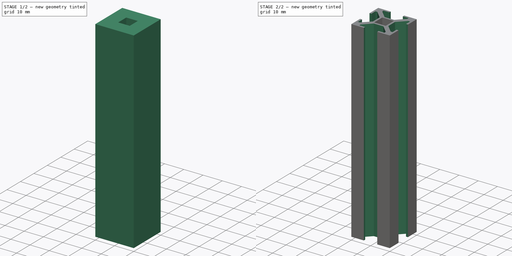
[diagram: build sequence overview — one tinted view per stage of 2, left to right]
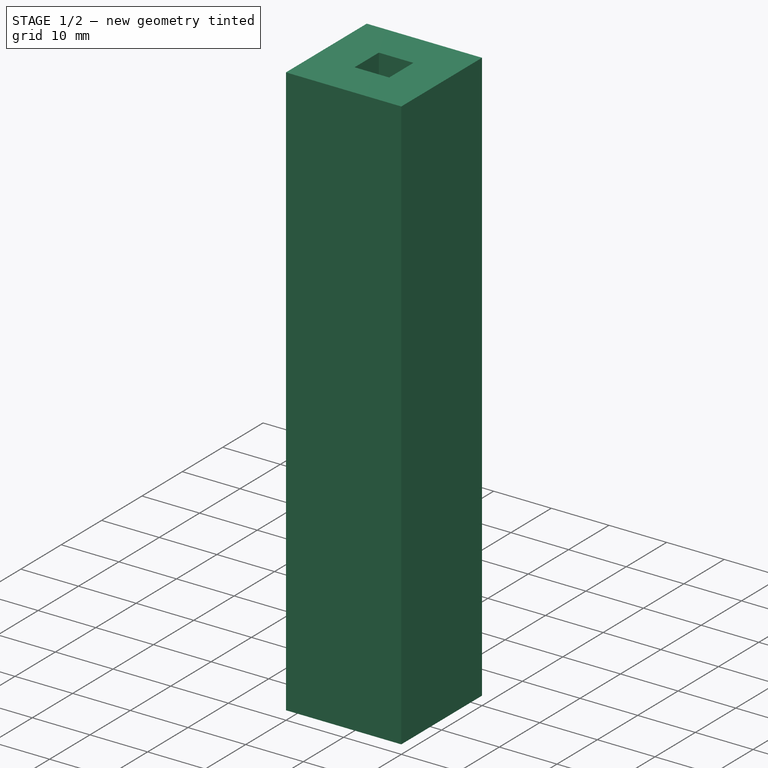
[diagram: stage 1 of 2 — iso view after this stage's code; geometry added in this stage tinted green]
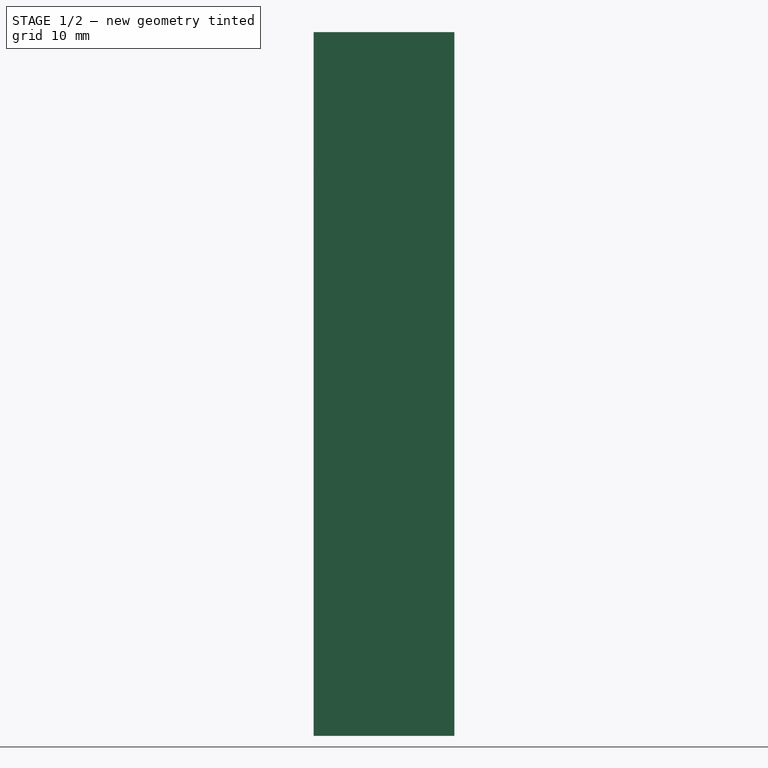
[diagram: stage 1 of 2 — front view after this stage's code; geometry added in this stage tinted green]
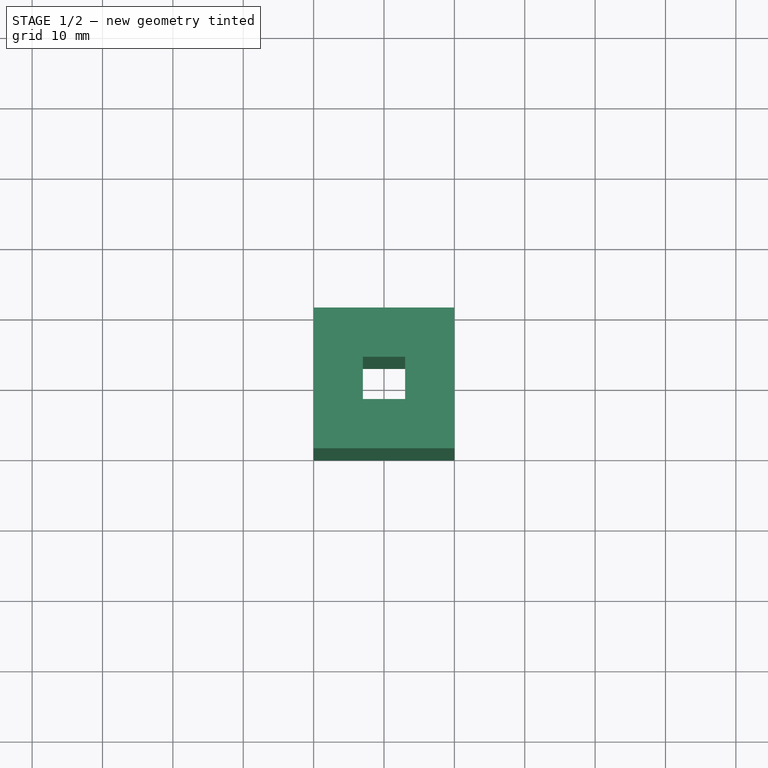
[diagram: stage 1 of 2 — top view after this stage's code; geometry added in this stage tinted green]
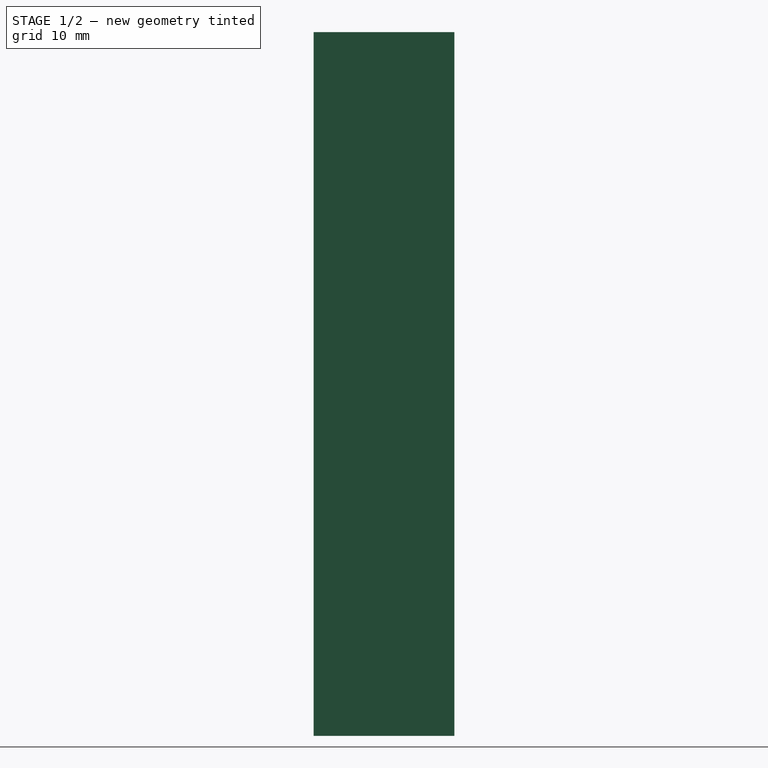
[diagram: stage 1 of 2 — right view after this stage's code; geometry added in this stage tinted green]
FCSTD DOCUMENT  (FreeCAD 0.18R4 (GitTag))
Label: rail
License: All rights reserved
LicenseURL: http://en.wikipedia.org/wiki/All_rights_reserved
objects: Sketcher::SketchObject×3, PartDesign::Pocket×2, PartDesign::Pad×1, PartDesign::Body×1
note: 10 computed .brp shape members not serialized (recipe doc carries the construction recipe); baked Part::Feature solids carry a one-line shape summary decoded from their .brp

FEATURE [Sketcher::SketchObject] Sketch
  MapMode = 5
  Support = -> [XY_Plane]
  sketch-geometry (19):
    g0: LineSegment StartX=0 StartY=20 StartZ=0 EndX=20 EndY=20 EndZ=0
    g1: LineSegment StartX=20 StartY=20 StartZ=0 EndX=20 EndY=0 EndZ=0
    g2: LineSegment StartX=20 StartY=0 StartZ=0 EndX=0 EndY=0 EndZ=0
    g3: LineSegment StartX=0 StartY=0 StartZ=0 EndX=0 EndY=20 EndZ=0
    g4: GeomPoint X=10 Y=10 Z=0
    g5: LineSegment [constr] StartX=6 StartY=14 StartZ=0 EndX=14 EndY=14 EndZ=0
    g6: LineSegment [constr] StartX=14 StartY=14 StartZ=0 EndX=14 EndY=6 EndZ=0
    g7: LineSegment [constr] StartX=14 StartY=6 StartZ=0 EndX=6 EndY=6 EndZ=0
    g8: LineSegment [constr] StartX=6 StartY=6 StartZ=0 EndX=6 EndY=14 EndZ=0
    g9: LineSegment [constr] StartX=0 StartY=0 StartZ=0 EndX=0 EndY=6.5 EndZ=0
    g10: LineSegment [constr] StartX=0 StartY=6.5 StartZ=0 EndX=1 EndY=6.5 EndZ=0
    g11: LineSegment [constr] StartX=1 StartY=6.5 StartZ=0 EndX=1 EndY=3.5 EndZ=0
    g12: LineSegment [constr] StartX=1 StartY=3.5 StartZ=0 EndX=2 EndY=3.5 EndZ=0
    g13: LineSegment [constr] StartX=2 StartY=3.5 StartZ=0 EndX=6 EndY=7.5 EndZ=0
    g14: LineSegment [constr] StartX=0 StartY=0 StartZ=0 EndX=6.5 EndY=0 EndZ=0
    g15: LineSegment [constr] StartX=6.5 StartY=0 StartZ=0 EndX=6.5 EndY=1 EndZ=0
    g16: LineSegment [constr] StartX=6.5 StartY=1 StartZ=0 EndX=3.5 EndY=1 EndZ=0
    g17: LineSegment [constr] StartX=3.5 StartY=1 StartZ=0 EndX=3.5 EndY=2 EndZ=0
    g18: LineSegment [constr] StartX=3.5 StartY=2 StartZ=0 EndX=7.5 EndY=6 EndZ=0
  constraints (52):
    c: Coincident(g0,g1)
    c: Coincident(g1,g2)
    c: Coincident(g2,g3)
    c: Coincident(g3,g0)
    c: Horizontal(g0)
    c: Horizontal(g2)
    c: Vertical(g1)
    c: Vertical(g3)
    c: Equal(g0,g1)
    c: DistanceY(g1,g1) = 20
    c: Coincident(g2,g-1)
    c: Symmetric(g0,g1,g4)
    c: Coincident(g5,g6)
    c: Coincident(g6,g7)
    c: Coincident(g8,g5)
    c: Horizontal(g5)
    c: Horizontal(g7)
    c: Vertical(g6)
    c: Vertical(g8)
    c: Equal(g5,g6)
    c: DistanceX(g5,g5) = 8
    c: Symmetric(g5,g6,g4)
    c: Coincident(g9,g10)
    c: Coincident(g10,g11)
    c: Coincident(g11,g12)
    c: Coincident(g12,g13)
    c: Coincident(g14,g15)
    c: Coincident(g15,g16)
    c: Coincident(g16,g17)
    c: Coincident(g17,g18)
    c: Horizontal(g14)
    c: Horizontal(g16)
    c: Horizontal(g12)
    c: Horizontal(g10)
    c: Vertical(g9)
    c: Vertical(g11)
    c: Vertical(g15)
    c: Vertical(g17)
    c: DistanceY(g9,g9) = 6.5
    c: DistanceX(g14,g14) = 6.5
    c: Coincident(g9,g-1)
    c: Coincident(g14,g-1)
    c: DistanceY(g-1,g11) = 3.5
    c: DistanceX(g-1,g16) = 3.5
    c: DistanceX(g10,g10) = 1
    c: DistanceX(g12,g12) = 1
    c: DistanceY(g15,g15) = 1
    c: DistanceY(g17,g17) = 1
    c: Angle(g13,g12) = 2.35619
    c: Angle(g17,g18) = 2.35619
    c: PointOnObject(g13,g8)
    c: PointOnObject(g18,g7)
FEATURE [PartDesign::Pad] Pad
  Length = 100
  Length2 = 100
  Profile = -> Sketch
  Type = 0
FEATURE [Sketcher::SketchObject] Sketch001
  ExternalGeometry = -> [Pad]
  MapMode = 5
  Placement = pos=(0,0,100) rot=(0,0,1;0rad)
  Support = -> [Pad]
  sketch-geometry (5):
    g0: LineSegment StartX=7 StartY=13 StartZ=0 EndX=13 EndY=13 EndZ=0
    g1: LineSegment StartX=13 StartY=13 StartZ=0 EndX=13 EndY=7 EndZ=0
    g2: LineSegment StartX=13 StartY=7 StartZ=0 EndX=7 EndY=7 EndZ=0
    g3: LineSegment StartX=7 StartY=7 StartZ=0 EndX=7 EndY=13 EndZ=0
    g4: GeomPoint X=10 Y=10 Z=0
  constraints (12):
    c: Coincident(g0,g1)
    c: Coincident(g1,g2)
    c: Coincident(g2,g3)
    c: Coincident(g3,g0)
    c: Horizontal(g0)
    c: Horizontal(g2)
    c: Vertical(g1)
    c: Vertical(g3)
    c: Symmetric(g-3,g-4,g4)
    c: Symmetric(g0,g1,g4)
    c: Equal(g0,g1)
    c: DistanceY(g1,g1) = 6
FEATURE [PartDesign::Pocket] Pocket
  BaseFeature = -> Pad
  Length = 12
  Length2 = 100
  Profile = -> Sketch001
  Type = 1
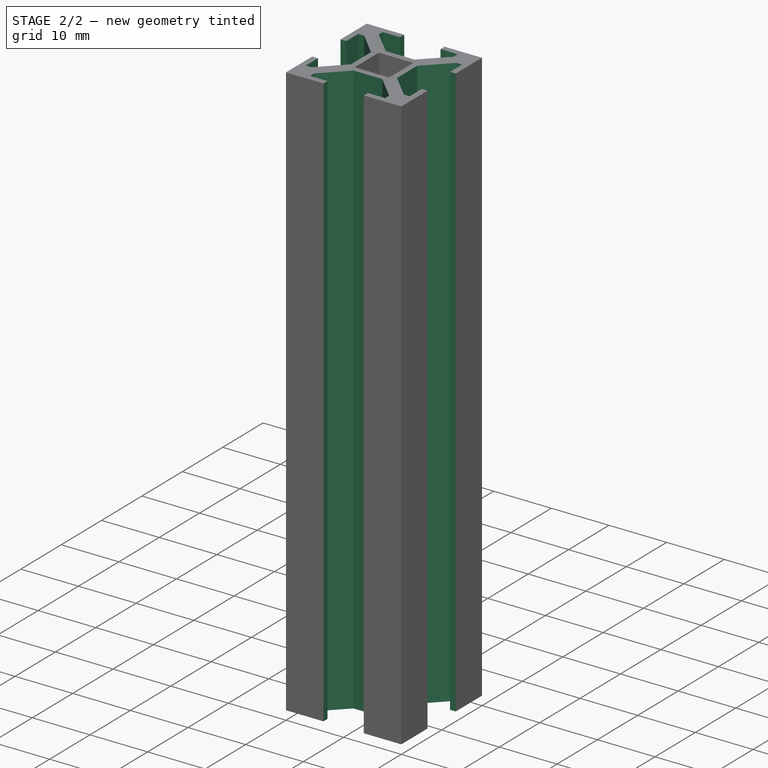
[diagram: stage 2 of 2 — iso view after this stage's code; geometry added in this stage tinted green]
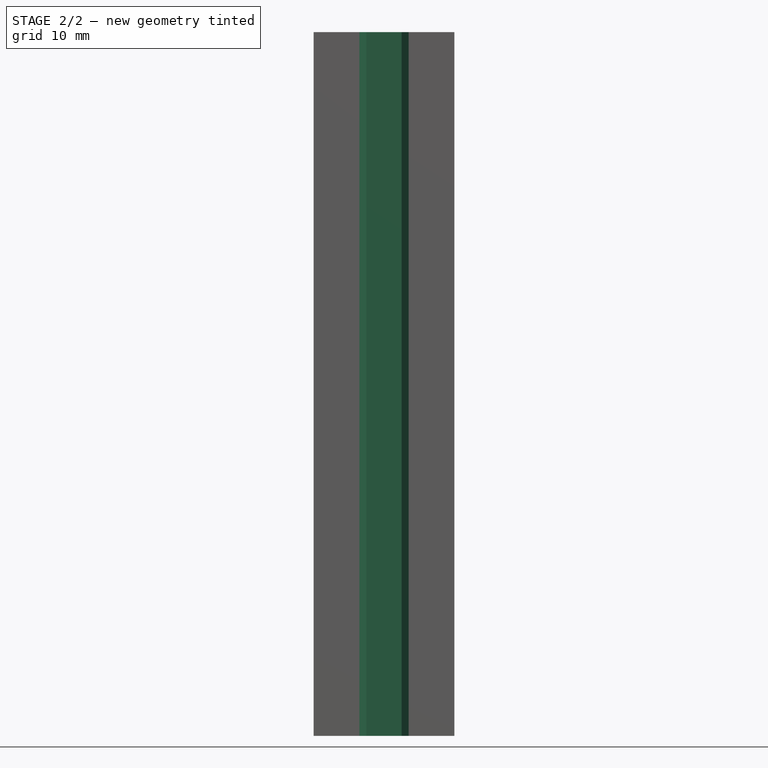
[diagram: stage 2 of 2 — front view after this stage's code; geometry added in this stage tinted green]
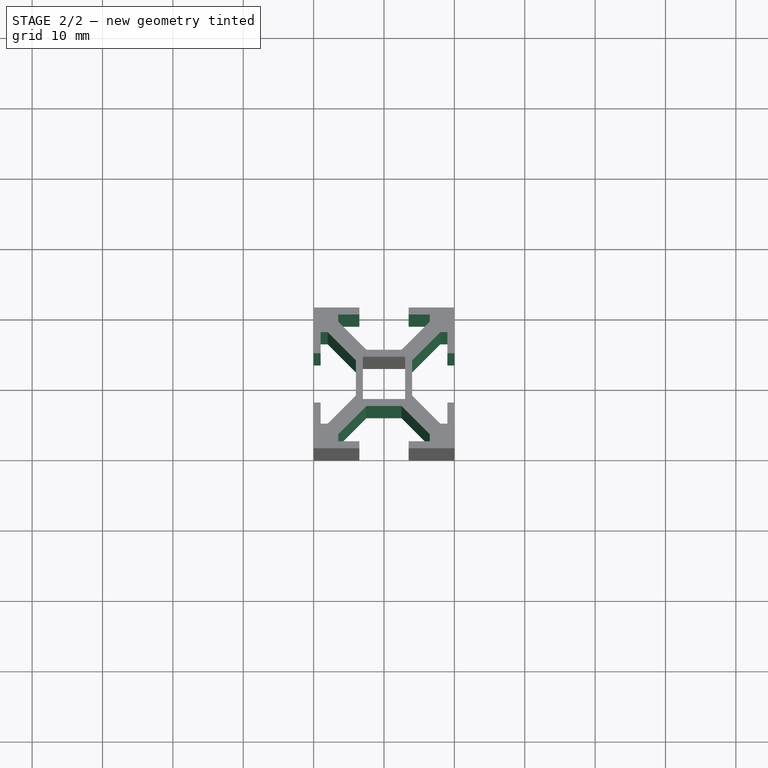
[diagram: stage 2 of 2 — top view after this stage's code; geometry added in this stage tinted green]
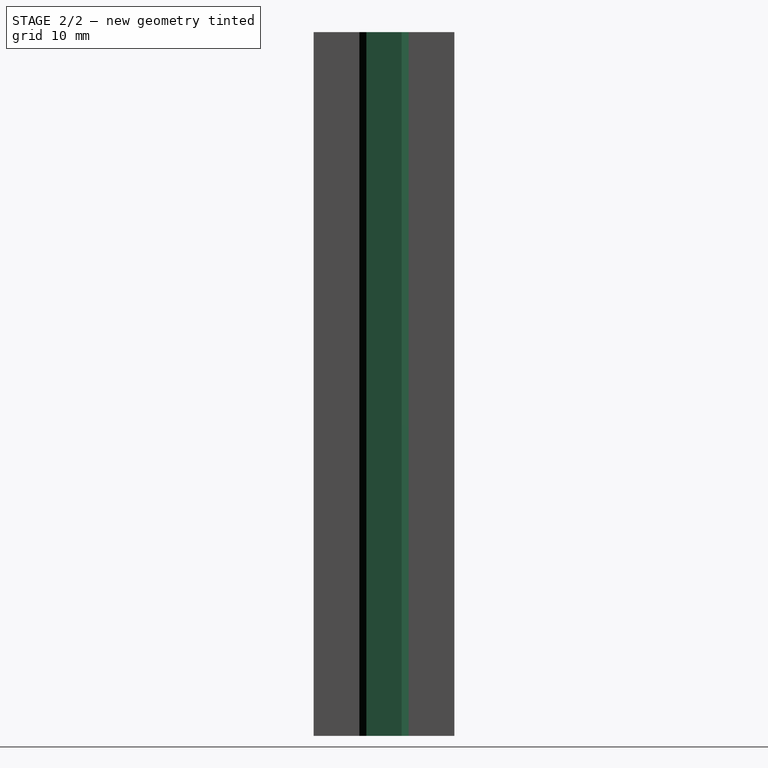
[diagram: stage 2 of 2 — right view after this stage's code; geometry added in this stage tinted green]
FEATURE [Sketcher::SketchObject] Sketch002
  ExternalGeometry = -> [Pocket]
  MapMode = 5
  Placement = pos=(0,0,100) rot=(0,0,1;0rad)
  Support = -> [Pocket]
  sketch-geometry (58):
    g0: LineSegment [constr] StartX=0 StartY=0 StartZ=0 EndX=0 EndY=6.5 EndZ=0
    g1: LineSegment StartX=0 StartY=6.5 StartZ=0 EndX=1 EndY=6.5 EndZ=0
    g2: LineSegment StartX=1 StartY=6.5 StartZ=0 EndX=1 EndY=3.5 EndZ=0
    g3: LineSegment StartX=1 StartY=3.5 StartZ=0 EndX=2 EndY=3.5 EndZ=0
    g4: LineSegment StartX=2 StartY=3.5 StartZ=0 EndX=6 EndY=7.5 EndZ=0
    g5: LineSegment [constr] StartX=0 StartY=0 StartZ=0 EndX=6.5 EndY=0 EndZ=0
    g6: LineSegment StartX=6.5 StartY=0 StartZ=0 EndX=6.5 EndY=1 EndZ=0
    g7: LineSegment StartX=6.5 StartY=1 StartZ=0 EndX=3.5 EndY=1 EndZ=0
    g8: LineSegment StartX=3.5 StartY=1 StartZ=0 EndX=3.5 EndY=2 EndZ=0
    g9: LineSegment StartX=3.5 StartY=2 StartZ=0 EndX=7.5 EndY=6 EndZ=0
    g10: GeomPoint X=10 Y=0 Z=0
    g11: LineSegment [constr] StartX=6 StartY=14 StartZ=0 EndX=14 EndY=14 EndZ=0
    g12: LineSegment [constr] StartX=14 StartY=14 StartZ=0 EndX=14 EndY=6 EndZ=0
    g13: LineSegment [constr] StartX=14 StartY=6 StartZ=0 EndX=6 EndY=6 EndZ=0
    g14: LineSegment [constr] StartX=6 StartY=6 StartZ=0 EndX=6 EndY=14 EndZ=0
    g15: GeomPoint X=10 Y=10 Z=0
    g16: LineSegment [constr] StartX=20 StartY=7.1e-15 StartZ=0 EndX=20 EndY=6.5 EndZ=0
    g17: LineSegment StartX=20 StartY=6.5 StartZ=0 EndX=19 EndY=6.5 EndZ=0
    g18: LineSegment StartX=19 StartY=6.5 StartZ=0 EndX=19 EndY=3.5 EndZ=0
    g19: LineSegment StartX=19 StartY=3.5 StartZ=0 EndX=18 EndY=3.5 EndZ=0
    g20: LineSegment StartX=18 StartY=3.5 StartZ=0 EndX=14 EndY=7.5 EndZ=0
    g21: LineSegment [constr] StartX=20 StartY=7.1e-15 StartZ=0 EndX=13.5 EndY=7.1e-15 EndZ=0
    g22: LineSegment StartX=13.5 StartY=7.1e-15 StartZ=0 EndX=13.5 EndY=1 EndZ=0
    g23: LineSegment StartX=13.5 StartY=1 StartZ=0 EndX=16.5 EndY=1 EndZ=0
    g24: LineSegment StartX=16.5 StartY=1 StartZ=0 EndX=16.5 EndY=2 EndZ=0
    g25: LineSegment StartX=16.5 StartY=2 StartZ=0 EndX=12.5 EndY=6 EndZ=0
    g26: LineSegment [constr] StartX=0 StartY=20 StartZ=0 EndX=0 EndY=13.5 EndZ=0
    g27: LineSegment StartX=0 StartY=13.5 StartZ=0 EndX=1 EndY=13.5 EndZ=0
    g28: LineSegment StartX=1 StartY=13.5 StartZ=0 EndX=1 EndY=16.5 EndZ=0
    g29: LineSegment StartX=1 StartY=16.5 StartZ=0 EndX=2 EndY=16.5 EndZ=0
    g30: LineSegment StartX=2 StartY=16.5 StartZ=0 EndX=6 EndY=12.5 EndZ=0
    g31: LineSegment [constr] StartX=0 StartY=20 StartZ=0 EndX=6.5 EndY=20 EndZ=0
    g32: LineSegment StartX=6.5 StartY=20 StartZ=0 EndX=6.5 EndY=19 EndZ=0
    g33: LineSegment StartX=6.5 StartY=19 StartZ=0 EndX=3.5 EndY=19 EndZ=0
    g34: LineSegment StartX=3.5 StartY=19 StartZ=0 EndX=3.5 EndY=18 EndZ=0
    g35: LineSegment StartX=3.5 StartY=18 StartZ=0 EndX=7.5 EndY=14 EndZ=0
    g36: GeomPoint X=10 Y=20 Z=0
    g37: LineSegment [constr] StartX=14 StartY=14 StartZ=0 EndX=6 EndY=14 EndZ=0
    g38: LineSegment [constr] StartX=20 StartY=20 StartZ=0 EndX=20 EndY=13.5 EndZ=0
    g39: LineSegment StartX=20 StartY=13.5 StartZ=0 EndX=19 EndY=13.5 EndZ=0
    g40: LineSegment StartX=19 StartY=13.5 StartZ=0 EndX=19 EndY=16.5 EndZ=0
    g41: LineSegment StartX=19 StartY=16.5 StartZ=0 EndX=18 EndY=16.5 EndZ=0
    g42: LineSegment StartX=18 StartY=16.5 StartZ=0 EndX=14 EndY=12.5 EndZ=0
    g43: LineSegment [constr] StartX=20 StartY=20 StartZ=0 EndX=13.5 EndY=20 EndZ=0
    g44: LineSegment StartX=13.5 StartY=20 StartZ=0 EndX=13.5 EndY=19 EndZ=0
    g45: LineSegment StartX=13.5 StartY=19 StartZ=0 EndX=16.5 EndY=19 EndZ=0
    g46: LineSegment StartX=16.5 StartY=19 StartZ=0 EndX=16.5 EndY=18 EndZ=0
    g47: LineSegment StartX=16.5 StartY=18 StartZ=0 EndX=12.5 EndY=14 EndZ=0
    g48: LineSegment StartX=6.5 StartY=20 StartZ=0 EndX=13.5 EndY=20 EndZ=0
    g49: LineSegment StartX=0 StartY=13.5 StartZ=0 EndX=0 EndY=6.5 EndZ=0
    g50: LineSegment StartX=20 StartY=13.5 StartZ=0 EndX=20 EndY=6.5 EndZ=0
    g51: LineSegment StartX=6.5 StartY=0 StartZ=0 EndX=13.5 EndY=7.1e-15 EndZ=0
    g52: LineSegment [constr] StartX=7.5 StartY=14 StartZ=0 EndX=12.5 EndY=14 EndZ=0
    g53: LineSegment StartX=14 StartY=12.5 StartZ=0 EndX=14 EndY=7.5 EndZ=0
    g54: LineSegment StartX=7.5 StartY=6 StartZ=0 EndX=12.5 EndY=6 EndZ=0
    g55: LineSegment [constr] StartX=6 StartY=12.5 StartZ=0 EndX=6 EndY=7.5 EndZ=0
    g56: LineSegment StartX=7.5 StartY=14 StartZ=0 EndX=12.5 EndY=14 EndZ=0
    g57: LineSegment StartX=6 StartY=12.5 StartZ=0 EndX=6 EndY=7.5 EndZ=0
  constraints (114):
    c: Coincident(g0,g1)
    c: Coincident(g1,g2)
    c: Coincident(g2,g3)
    c: Coincident(g3,g4)
    c: Coincident(g5,g6)
    c: Coincident(g6,g7)
    c: Coincident(g7,g8)
    c: Coincident(g8,g9)
    c: Horizontal(g1)
    c: Horizontal(g7)
    c: Vertical(g2)
    c: Vertical(g8)
    c: Vertical(g6)
    c: DistanceX(g5,g7) = 3.5
    c: DistanceX(g1,g1) = 1
    c: DistanceY(g6,g6) = 1
    c: Angle(g4,g3) = 2.35619
    c: Angle(g8,g9) = 2.35619
    c: Coincident(g0,g-1)
    c: Coincident(g5,g-1)
    c: DistanceY(g8,g8) = 1
    c: Coincident(g11,g12)
    c: Coincident(g12,g13)
    c: Coincident(g13,g14)
    c: Coincident(g14,g11)
    c: Equal(g11,g12)
    c: Symmetric(g-4,g-5,g15)
    c: Symmetric(g13,g11,g15)
    c: PointOnObject(g9,g13)
    c: Coincident(g16,g17)
    c: Coincident(g17,g18)
    c: Coincident(g18,g19)
    c: Coincident(g19,g20)
    c: Coincident(g21,g22)
    c: Coincident(g22,g23)
    c: Coincident(g23,g24)
    c: Coincident(g24,g25)
    c: Horizontal(g17)
    c: Horizontal(g19)
    c: Horizontal(g23)
    c: Horizontal(g21)
    c: Vertical(g16)
    c: Vertical(g18)
    c: Vertical(g24)
    c: Vertical(g22)
    c: Coincident(g26,g27)
    c: Coincident(g27,g28)
    c: Coincident(g28,g29)
    c: Coincident(g29,g30)
    c: Coincident(g31,g32)
    c: Coincident(g32,g33)
    c: Coincident(g33,g34)
    c: Coincident(g34,g35)
    c: Horizontal(g27)
    c: Horizontal(g29)
    c: Horizontal(g33)
    c: Horizontal(g31)
    c: Vertical(g26)
    c: Vertical(g28)
    c: Vertical(g34)
    c: Vertical(g32)
    c: PointOnObject(g35,g37)
    c: Coincident(g38,g39)
    c: Coincident(g39,g40)
    c: Coincident(g40,g41)
    c: Coincident(g41,g42)
    c: Coincident(g43,g44)
    c: Coincident(g44,g45)
    c: Coincident(g45,g46)
    c: Coincident(g46,g47)
    c: Horizontal(g39)
    c: Horizontal(g41)
    c: Horizontal(g45)
    c: Horizontal(g43)
    c: Vertical(g38)
    c: Vertical(g40)
    c: Vertical(g46)
    c: Vertical(g44)
    c: Block(g32)
    c: Coincident(g48,g31)
    c: Block(g44)
    c: Coincident(g48,g43)
    c: Block(g27)
    c: Block(g1)
    c: Block(g39)
    c: Block(g17)
    c: Block(g6)
    c: Block(g22)
    c: Coincident(g51,g5)
    c: Coincident(g51,g21)
    c: Coincident(g49,g0)
    c: Coincident(g50,g16)
    c: Coincident(g50,g38)
    c: Coincident(g49,g26)
    c: Block(g13)
    c: Block(g25)
    c: Coincident(g54,g25)
    c: Coincident(g54,g9)
    c: Block(g30)
    c: Block(g4)
    c: Block(g35)
    c: Block(g47)
    c: Block(g20)
    c: Coincident(g55,g30)
    c: Coincident(g55,g4)
    c: Coincident(g52,g35)
    c: Coincident(g52,g47)
    c: Block(g42)
    c: Coincident(g53,g42)
    c: Coincident(g53,g20)
    c: Coincident(g56,g35)
    c: Coincident(g56,g47)
    c: Coincident(g57,g30)
    c: Coincident(g57,g4)
FEATURE [PartDesign::Pocket] Pocket001
  BaseFeature = -> Pocket
  Length = 0
  Length2 = 100
  Profile = -> Sketch002
  Type = 1
FEATURE [PartDesign::Body] Body
  Group = -> [Sketch,Pad,Sketch001,Pocket,Sketch002,Pocket001]
  Origin = -> Origin
  Tip = -> Pocket001
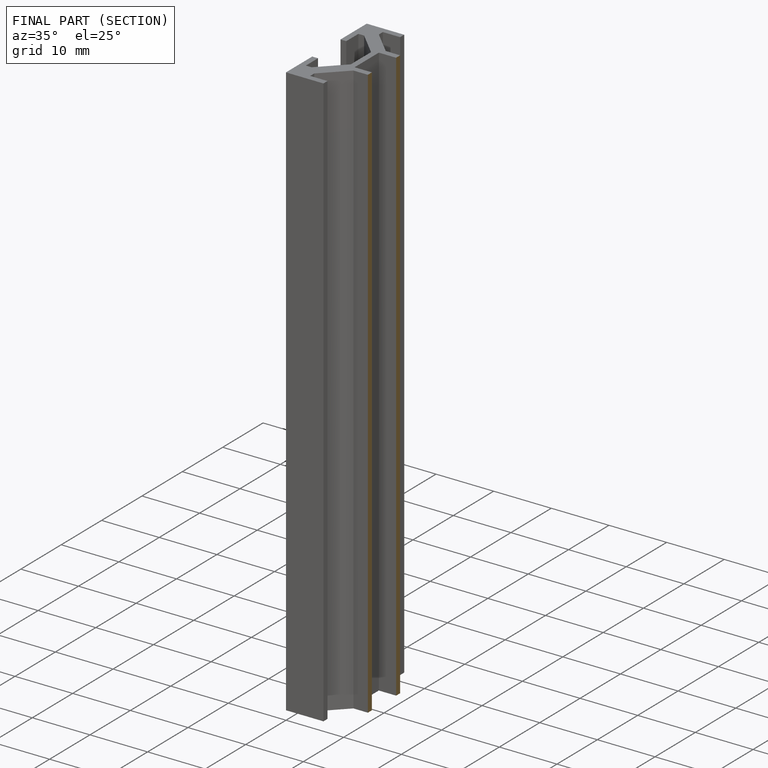
[diagram: finished part — half-section view (interior)]
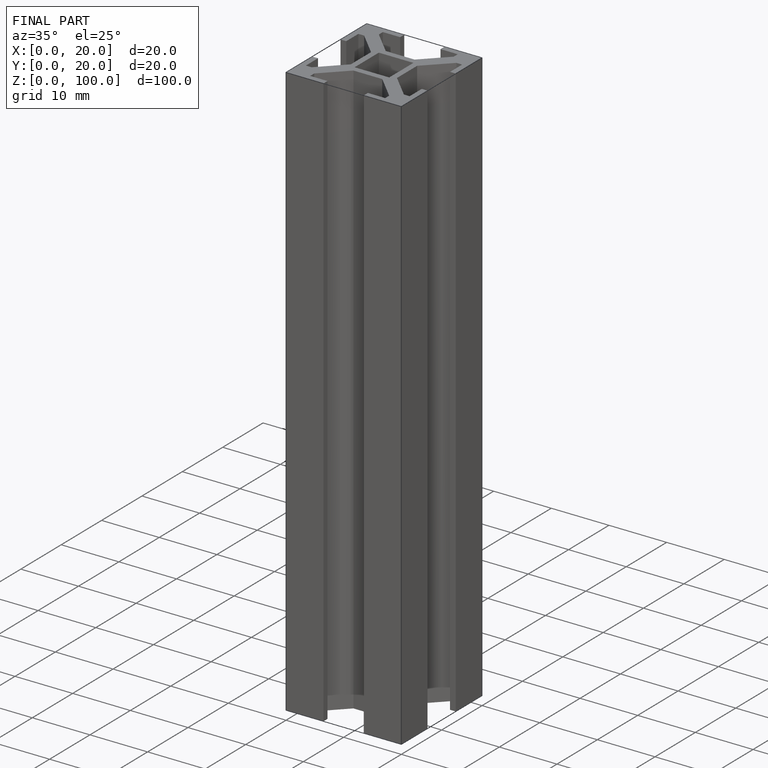
[diagram: finished part — iso view with bounding-box wireframe]
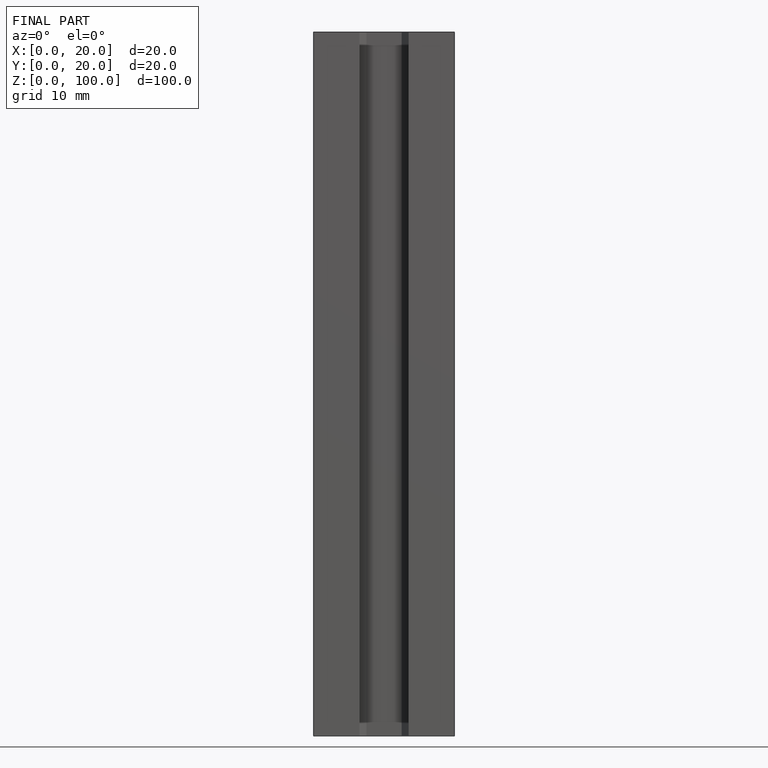
[diagram: finished part — front view with bounding-box wireframe]
